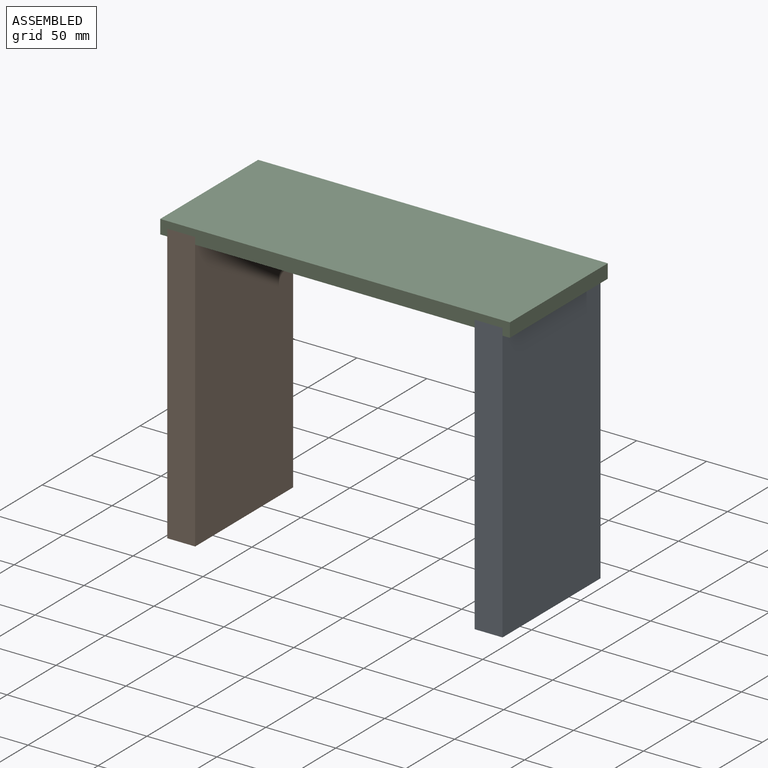
[diagram: assembled view]
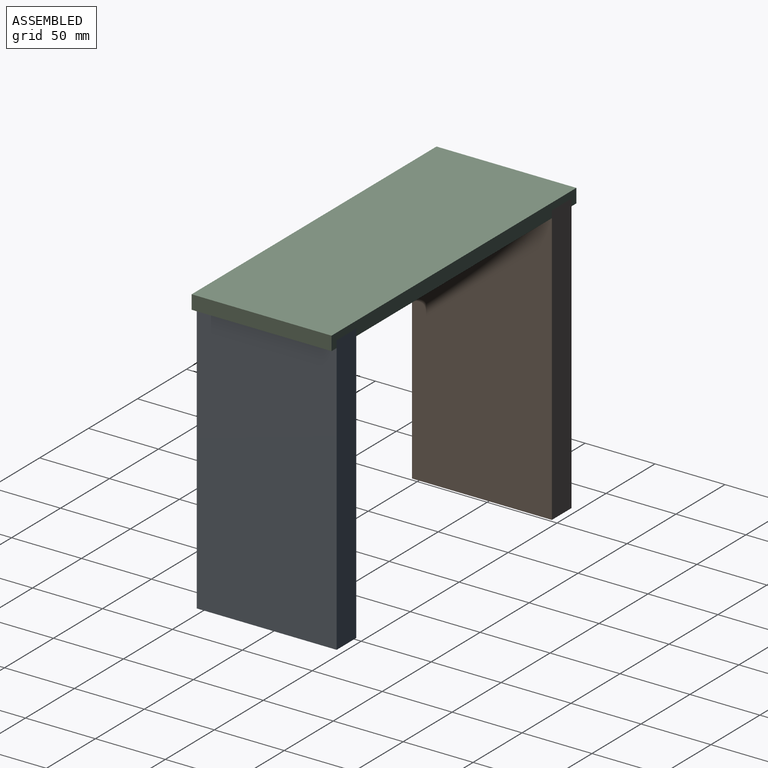
[diagram: assembled view, second angle]
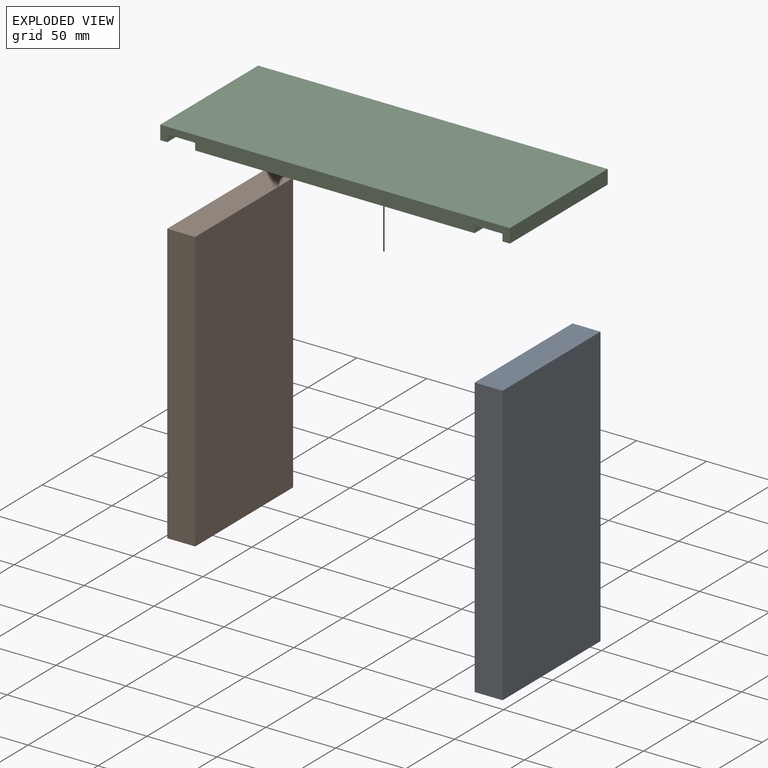
[diagram: exploded view]
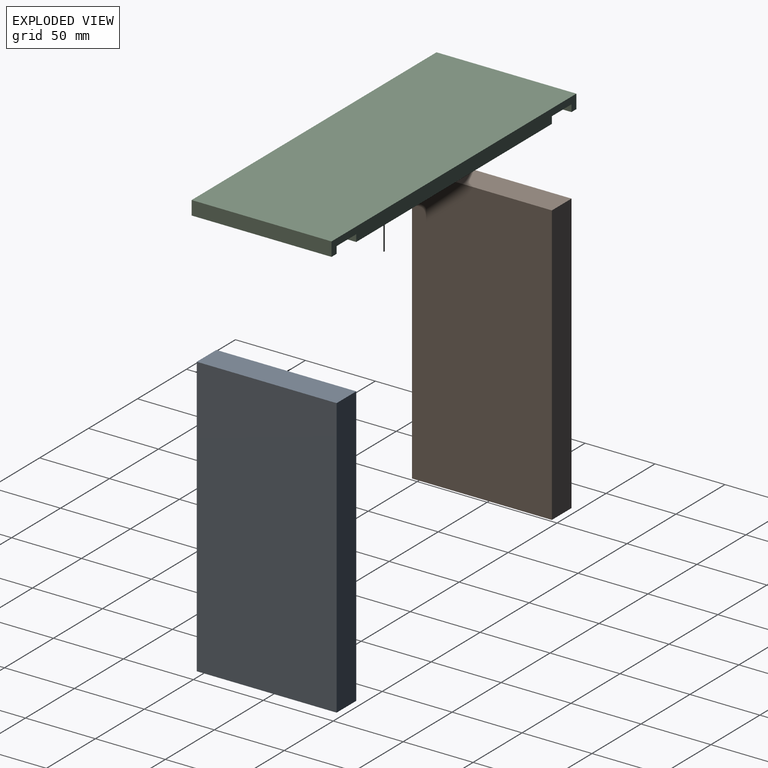
[diagram: exploded view, second angle]
ASSEMBLY  parts=3 mates=2
PART A: 6 faces, bbox 20x100x200 mm
  f0: plane 100x20mm, normal (0,0,1), area 2000mm2, adj f1,f3,f4,f5
  f1: plane 200x100mm, normal (-1,0,0), area 20000mm2, adj f0,f2,f4,f5
  f2: plane 100x20mm, normal (0,0,-1), area 2000mm2, adj f1,f3,f4,f5
  f3: plane 200x100mm, normal (1,0,0), area 20000mm2, adj f0,f2,f4,f5
  f4: plane 200x20mm, normal (0,-1,0), area 4000mm2, adj f0,f1,f2,f3
  f5: plane 200x20mm, normal (0,1,0), area 4000mm2, adj f0,f1,f2,f3
PART B: same geometry as A
PART C: 14 faces, bbox 250x100x10 mm
  f0: plane 100x5.23mm, normal (0,0,-1), area 522.7mm2, adj f1,f5,f7,f12
  f1: plane 250x10mm, normal (0,1,0), area 2300mm2, adj f0,f2,f3,f4,f6,f7,f8,f9
  f2: plane 199.77x100mm, normal (0,0,-1), area 19977.3mm2, adj f1,f5,f9,f11
  f3: plane 100x20mm, normal (0,0,-1), area 2000mm2, adj f1,f5,f9,f10
  f4: plane 100x5mm, normal (0,0,-1), area 500mm2, adj f1,f5,f6,f10
  f5: plane 250x10mm, normal (0,-1,0), area 2300mm2, adj f0,f2,f3,f4,f6,f7,f8,f9
  f6: plane 100x10mm, normal (-1,0,0), area 1000mm2, adj f1,f4,f5,f8
  f7: plane 100x10mm, normal (1,0,0), area 1000mm2, adj f0,f1,f5,f8
  f8: plane 250x100mm, normal (0,0,1), area 25000mm2, adj f1,f5,f6,f7
  f9: plane 100x5mm, normal (-1,0,0), area 500mm2, adj f1,f2,f3,f5
  f10: plane 100x5mm, normal (1,0,0), area 500mm2, adj f1,f3,f4,f5
  f11: plane 100x5mm, normal (1,0,0), area 500mm2, adj f1,f2,f5,f13
  f12: plane 100x5mm, normal (-1,0,0), area 500mm2, adj f0,f1,f5,f13
  f13: plane 100x20mm, normal (0,0,-1), area 2000mm2, adj f1,f5,f11,f12
PLACE A t=(-34.87,201.3,-281.08)mm
PLACE B t=(-254.65,201.3,-281.08)mm
PLACE C t=(-44.91,91.06,-142.06)mm
MATE fastened B.f0 <-> C.f3  axis (0,0,1) through (-231.45,151.3,-137.06)mm
MATE fastened C.f13 <-> A.f0  axis (0,0,-1) through (-11.68,151.3,-137.06)mm
